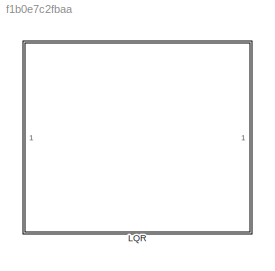
MODEL slx_f1b0e7c2fbaa
KIND model
CONFIG AbsTol = auto
CONFIG EnableMultiTasking = off
CONFIG FixedStep = auto
CONFIG MaxStep = auto
CONFIG MinStep = auto
CONFIG RelTol = 1e-3
CONFIG SampleTimeConstraint = Unconstrained
CONFIG SolverName = VariableStepAuto
CONFIG StartTime = 0.0
CONFIG StopTime = 10.0
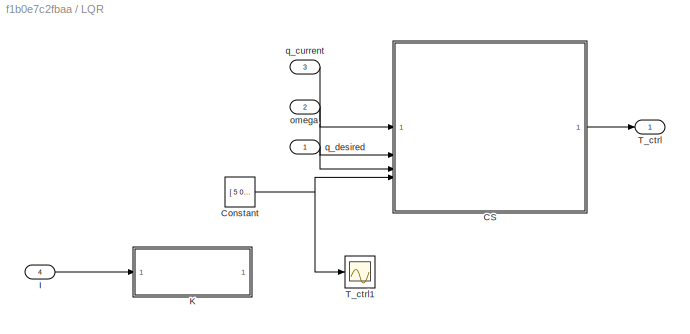
BLOCK [SubSystem] LQR
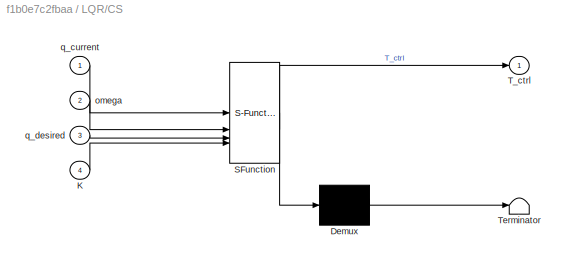
BLOCK [SubSystem] LQR/CS
  ErrorFcn = Stateflow.Translate.translate
  PermitHierarchicalResolution = ExplicitOnly
  SFBlockType = MATLAB Function
  TreatAsAtomicUnit = on
BLOCK [Demux] LQR/CS/ Demux 
  Outputs = 1
BLOCK [S-Function] LQR/CS/ SFunction 
  EnableBusSupport = on
  FunctionName = sf_sfun
  PortCounts = [4 2]
  SFcnIsStateOwnerBlock = off
  SFunctionDeploymentMode = off
  Tag = Stateflow S-Function 6
BLOCK [Terminator] LQR/CS/ Terminator 
BLOCK [Inport] LQR/CS/K
  Port = 4
BLOCK [Outport] LQR/CS/T_ctrl
BLOCK [Inport] LQR/CS/omega
  Port = 2
BLOCK [Inport] LQR/CS/q_current
BLOCK [Inport] LQR/CS/q_desired
  Port = 3
BLOCK [Constant] LQR/Constant
  Value = [\n    5   0   0   1.0  0    0;\n    0   5   0   0    1.0  0;\n    0   0   5   0    0    1.0\n]
BLOCK [Inport] LQR/I
  Port = 4
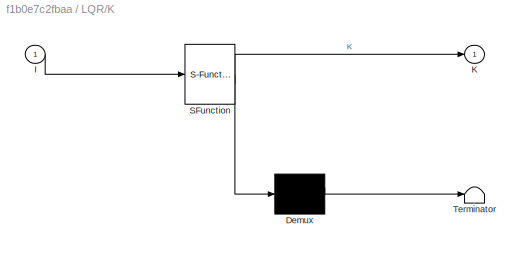
BLOCK [SubSystem] LQR/K
  ErrorFcn = Stateflow.Translate.translate
  PermitHierarchicalResolution = ExplicitOnly
  SFBlockType = MATLAB Function
  TreatAsAtomicUnit = on
BLOCK [Demux] LQR/K/ Demux 
  Outputs = 1
BLOCK [S-Function] LQR/K/ SFunction 
  EnableBusSupport = on
  FunctionName = sf_sfun
  PortCounts = [1 2]
  SFcnIsStateOwnerBlock = off
  SFunctionDeploymentMode = off
  Tag = Stateflow S-Function 17
BLOCK [Terminator] LQR/K/ Terminator 
BLOCK [Inport] LQR/K/I
BLOCK [Outport] LQR/K/K
BLOCK [Outport] LQR/T_ctrl
BLOCK [Scope] LQR/T_ctrl1
  Floating = off
  NumInputPorts = 1
  ScopeSpecificationString = Simulink.scopes.TimeScopeBlockCfg('CurrentConfiguration', extmgr.ConfigurationSet(extmgr.Configuration('Core','General UI',true),extmgr.Configuration('Core','Source UI',true),extmgr.Configuration('Sources','WiredSimulink',true,'DataLoggingVariableName','ScopeData16'),extmgr.Configuration('Visuals','Time Domain',true,'SerializedDisplays',{struct('MinYLimReal','-122.43954','MaxYLimReal','121.91641',...<+2378ch>
BLOCK [Inport] LQR/omega
  Port = 2
BLOCK [Inport] LQR/q_current
  Port = 3
BLOCK [Inport] LQR/q_desired
LINE LQR/CS:1 -> LQR/T_ctrl:1
NET LQR/Constant:1 -> LQR/CS:4, LQR/T_ctrl1:1
LINE LQR/I:1 -> LQR/K:1
LINE LQR/omega:1 -> LQR/CS:2
LINE LQR/q_current:1 -> LQR/CS:1
LINE LQR/q_desired:1 -> LQR/CS:3
note: NET lines group one-source signal fan-out (src -> all destinations, sorted); 1:1 wires keep LINE
CHART LQR/CS states=1 transitions=1
  STATE_LABEL 'eML_blk_kernel()'
  STATE_LABEL 'SCRIPT:\nfunction T_ctrl = lqr_attitude_control(q_current, omega,q_desired, K)\n% Inputs:\n%   q_current: [4x1] current quaternion\n%   omega:     [3x1] angular velocity\n%   q_desired: [4x1] desired quaternion\n%   K:         [3x6] LQR gain matrix\n\n% Normalize quaternions (important for numerical stability)\nq_current = q_current / norm(q_current);\nq_desired = q_desired / norm(q_desired);\n\n% Quaternion ...<+325ch>'
CHART LQR/K states=1 transitions=1
  STATE_LABEL 'eML_blk_kernel()'
  STATE_LABEL 'SCRIPT:\nfunction K = computeK_manual(I)\n% Fully Simulink-compatible LQR gain using Riccati iteration, no inv()\n\n% Output definition\nK = zeros(3,6);\n\n% Validate input inertia\nif any(size(I) ~= [3, 3])\n    return;\nend\n\n% A, B matrices\nA = [zeros(3), 0.5 * eye(3);\n     zeros(3), zeros(3)];\nB = [zeros(3);\n     I \\ eye(3)];  % Same as inv(I) * I_identity\n\n% LQR weights\nQ = diag([100, 100, 100, 5, 5, 5]...<+314ch>'
CHART  states=0 transitions=0
CHART  states=0 transitions=0
